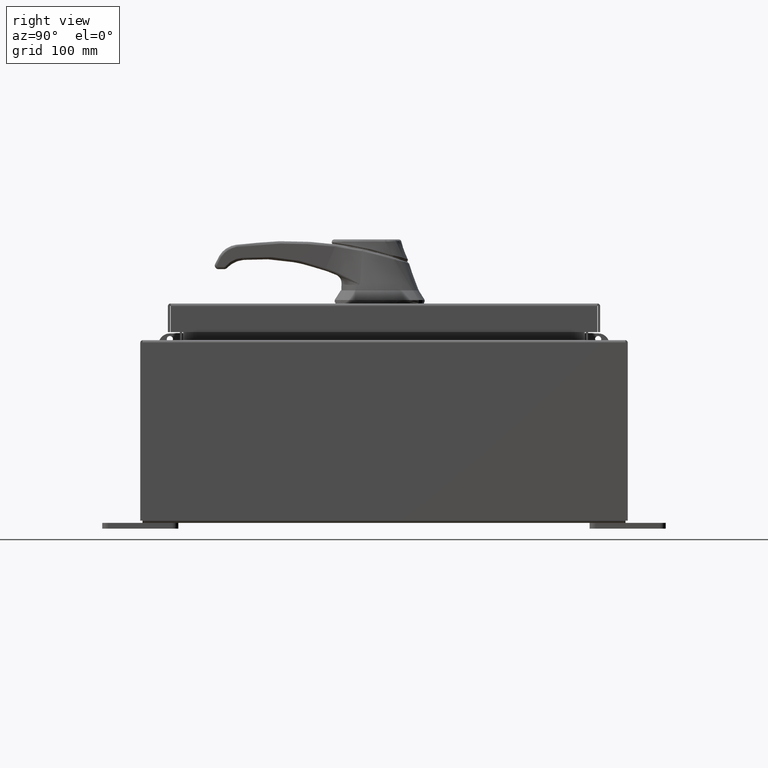
[diagram: clean part render]
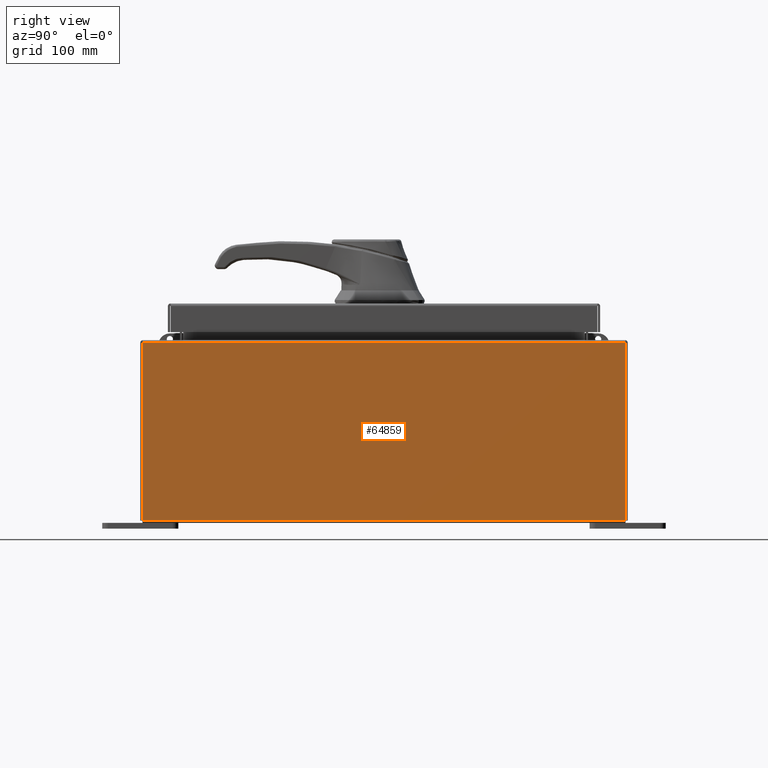
[diagram: same view with one face highlighted and labeled with its STEP entity id]
A machine part, right view. The second image highlights one B-rep face of the part: STEP entity #64859.
In plain terms, the highlighted planar face has unit normal (-1, 0, 0).
Its self-contained STEP definition (entity closure, byte-faithful):
#4291 = LINE ( 'NONE', #29071, #45250 ) ;
#4726 = DIRECTION ( 'NONE',  ( -0.0000000000000000000, -1.000000000000000000, -0.0000000000000000000 ) ) ;
#6689 = LINE ( 'NONE', #78002, #79577 ) ;
#7024 = VERTEX_POINT ( 'NONE', #58283 ) ;
#17167 = VERTEX_POINT ( 'NONE', #72094 ) ;
#21073 = AXIS2_PLACEMENT_3D ( 'NONE', #85840, #36960, #94110 ) ;
#22395 = VECTOR ( 'NONE', #89989, 39.37007874015748100 ) ;
#25597 = ORIENTED_EDGE ( 'NONE', *, *, #28489, .T. ) ;
#28489 = EDGE_CURVE ( 'NONE', #91585, #17167, #82700, .T. ) ;
#29071 = CARTESIAN_POINT ( 'NONE',  ( 5.999999999999999100, -7.925300000000000000, 0.01299999999999984700 ) ) ;
#33088 = ORIENTED_EDGE ( 'NONE', *, *, #74533, .F. ) ;
#35909 = CARTESIAN_POINT ( 'NONE',  ( 5.999999999999999100, -7.925300000000000900, -1.982302697000672100E-014 ) ) ;
#36960 = DIRECTION ( 'NONE',  ( -1.000000000000000000, 0.0000000000000000000, 3.503965158194250900E-015 ) ) ;
#40404 = EDGE_CURVE ( 'NONE', #7024, #95901, #65876, .T. ) ;
#44114 = DIRECTION ( 'NONE',  ( -3.503965158194251300E-015, -1.844192188523290500E-016, -1.000000000000000000 ) ) ;
#45250 = VECTOR ( 'NONE', #69788, 39.37007874015748100 ) ;
#53028 = PLANE ( 'NONE',  #21073 ) ;
#53192 = ORIENTED_EDGE ( 'NONE', *, *, #40404, .T. ) ;
#53750 = CARTESIAN_POINT ( 'NONE',  ( 6.000000000000020400, -7.925300000000000000, 5.837600000000001000 ) ) ;
#58283 = CARTESIAN_POINT ( 'NONE',  ( 5.999999999999999100, 7.925300000000000000, 0.01299999999999984700 ) ) ;
#61025 = VECTOR ( 'NONE', #44114, 39.37007874015748100 ) ;
#64859 = ADVANCED_FACE ( 'NONE', ( #77077 ), #53028, .F. ) ;
#65876 = LINE ( 'NONE', #73602, #22395 ) ;
#69788 = DIRECTION ( 'NONE',  ( -0.0000000000000000000, -1.000000000000000000, -0.0000000000000000000 ) ) ;
#72094 = CARTESIAN_POINT ( 'NONE',  ( 5.999999999999999100, -7.925300000000000000, 0.01299999999999984500 ) ) ;
#73602 = CARTESIAN_POINT ( 'NONE',  ( 5.999999999999999100, 7.925299999999998200, -2.128460460517708500E-014 ) ) ;
#74533 = EDGE_CURVE ( 'NONE', #7024, #17167, #4291, .T. ) ;
#76310 = EDGE_LOOP ( 'NONE', ( #92885, #25597, #33088, #53192 ) ) ;
#77077 = FACE_OUTER_BOUND ( 'NONE', #76310, .T. ) ;
#78002 = CARTESIAN_POINT ( 'NONE',  ( 6.000000000000020400, 7.925300000000000000, 5.837600000000001000 ) ) ;
#79577 = VECTOR ( 'NONE', #4726, 39.37007874015748100 ) ;
#82700 = LINE ( 'NONE', #35909, #61025 ) ;
#85840 = CARTESIAN_POINT ( 'NONE',  ( 5.999999999999999100, 0.0000000000000000000, -2.128460460517708500E-014 ) ) ;
#89989 = DIRECTION ( 'NONE',  ( 3.503965158194251300E-015, 0.0000000000000000000, 1.000000000000000000 ) ) ;
#91585 = VERTEX_POINT ( 'NONE', #53750 ) ;
#92885 = ORIENTED_EDGE ( 'NONE', *, *, #95143, .T. ) ;
#93271 = CARTESIAN_POINT ( 'NONE',  ( 6.000000000000020400, 7.925300000000000000, 5.837600000000001000 ) ) ;
#94110 = DIRECTION ( 'NONE',  ( 3.503965158194250900E-015, 0.0000000000000000000, 1.000000000000000000 ) ) ;
#95143 = EDGE_CURVE ( 'NONE', #95901, #91585, #6689, .T. ) ;
#95901 = VERTEX_POINT ( 'NONE', #93271 ) ;